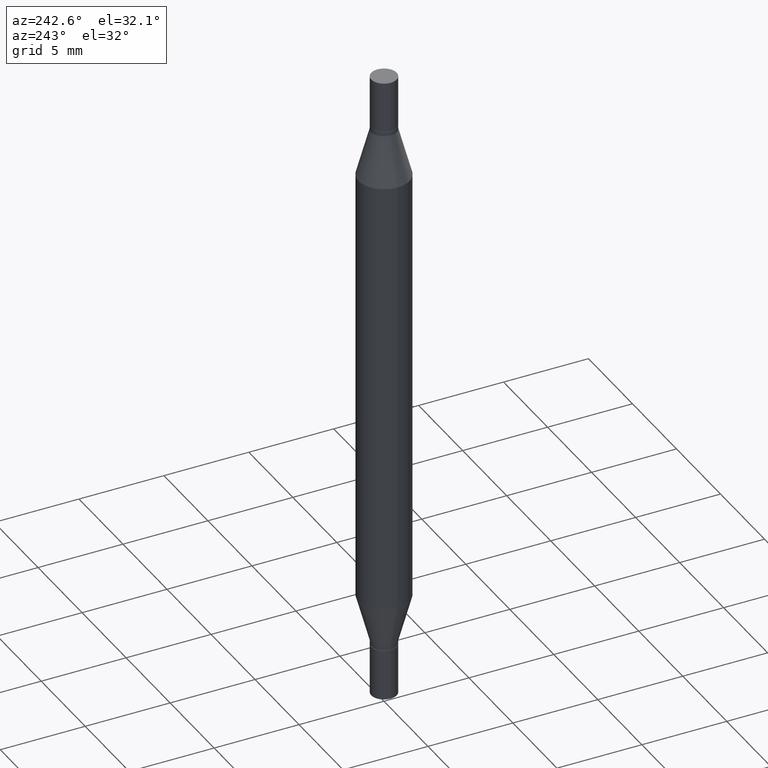
[diagram: clean part render]
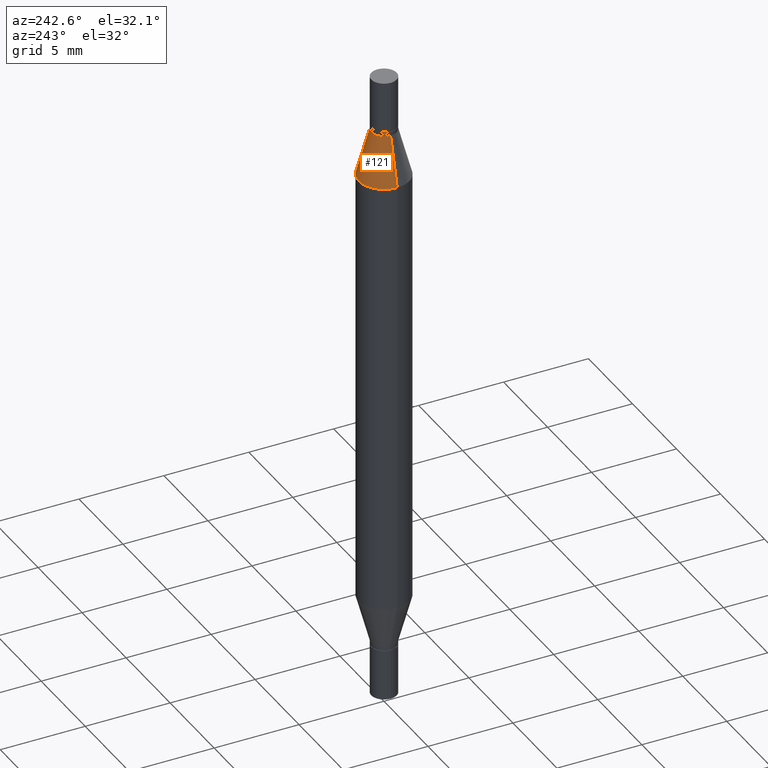
[diagram: same view with one face highlighted and labeled with its STEP entity id]
A machine part, auxiliary view. The second image highlights one B-rep face of the part: STEP entity #121.
In plain terms, the highlighted conical surface has half-angle 15 deg.
Its self-contained STEP definition (entity closure, byte-faithful):
#20 = CARTESIAN_POINT ( 'NONE',  ( 3.076410765668156654E-29, -8.311408901143919011E-16, -0.2380954988232820146 ) ) ;
#26 = CARTESIAN_POINT ( 'NONE',  ( -0.02954999999999991661, -2.439811505568221169E-16, -0.1280000000000001137 ) ) ;
#63 = CARTESIAN_POINT ( 'NONE',  ( 3.345645873741884627E-29, -4.467088663909703532E-16, -0.1280000000000001137 ) ) ;
#65 = DIRECTION ( 'NONE',  ( 1.000000000000000000, -6.982962677686265133E-15, 0.000000000000000000 ) ) ;
#118 = LINE ( 'NONE', #26, #453 ) ;
#121 = ADVANCED_FACE ( 'NONE', ( #738 ), #760, .T. ) ;
#148 = ORIENTED_EDGE ( 'NONE', *, *, #591, .T. ) ;
#167 = VERTEX_POINT ( 'NONE', #646 ) ;
#190 = DIRECTION ( 'NONE',  ( 2.445468806185136597E-29, 3.491805094961124077E-15, 1.000000000000000000 ) ) ;
#193 = EDGE_CURVE ( 'NONE', #251, #167, #351, .T. ) ;
#202 = CIRCLE ( 'NONE', #717, 0.05904999999999999832 ) ;
#221 = DIRECTION ( 'NONE',  ( -2.445468806185136597E-29, -3.491805094961124077E-15, -1.000000000000000000 ) ) ;
#235 = AXIS2_PLACEMENT_3D ( 'NONE', #360, #501, #953 ) ;
#251 = VERTEX_POINT ( 'NONE', #383 ) ;
#311 = EDGE_LOOP ( 'NONE', ( #886, #526, #148, #549 ) ) ;
#347 = DIRECTION ( 'NONE',  ( 1.000000000000000000, -6.982962677686265133E-15, 0.000000000000000000 ) ) ;
#349 = AXIS2_PLACEMENT_3D ( 'NONE', #63, #221, #65 ) ;
#351 = CIRCLE ( 'NONE', #235, 0.02954999999999991661 ) ;
#360 = CARTESIAN_POINT ( 'NONE',  ( 3.345645873741884627E-29, -4.467088663909703532E-16, -0.1280000000000001137 ) ) ;
#368 = VERTEX_POINT ( 'NONE', #633 ) ;
#369 = CARTESIAN_POINT ( 'NONE',  ( 0.02954999999999991661, -6.530554135165988789E-16, -0.1280000000000001137 ) ) ;
#383 = CARTESIAN_POINT ( 'NONE',  ( 0.02954999999999991661, -6.530554135165988789E-16, -0.1280000000000001137 ) ) ;
#453 = VECTOR ( 'NONE', #639, 39.37007874015747433 ) ;
#455 = VECTOR ( 'NONE', #963, 39.37007874015747433 ) ;
#461 = EDGE_CURVE ( 'NONE', #167, #368, #118, .T. ) ;
#470 = VERTEX_POINT ( 'NONE', #626 ) ;
#501 = DIRECTION ( 'NONE',  ( 2.445468806185136597E-29, 3.491805094961124077E-15, 1.000000000000000000 ) ) ;
#526 = ORIENTED_EDGE ( 'NONE', *, *, #193, .F. ) ;
#549 = ORIENTED_EDGE ( 'NONE', *, *, #802, .T. ) ;
#591 = EDGE_CURVE ( 'NONE', #251, #470, #650, .T. ) ;
#626 = CARTESIAN_POINT ( 'NONE',  ( 0.05904999999999999832, -1.243484836231766624E-15, -0.2380954988232820146 ) ) ;
#633 = CARTESIAN_POINT ( 'NONE',  ( -0.05904999999999999832, -4.260284833459836245E-16, -0.2380954988232820146 ) ) ;
#639 = DIRECTION ( 'NONE',  ( -0.2588190451025213501, -1.597197180879714326E-15, -0.9659258262890682012 ) ) ;
#646 = CARTESIAN_POINT ( 'NONE',  ( -0.02954999999999991661, -2.275696666105042854E-16, -0.1280000000000001137 ) ) ;
#650 = LINE ( 'NONE', #369, #455 ) ;
#717 = AXIS2_PLACEMENT_3D ( 'NONE', #20, #190, #347 ) ;
#738 = FACE_OUTER_BOUND ( 'NONE', #311, .T. ) ;
#760 = CONICAL_SURFACE ( 'NONE', #349, 0.02954999999999991661, 0.2617993877991500740 ) ;
#802 = EDGE_CURVE ( 'NONE', #470, #368, #202, .T. ) ;
#886 = ORIENTED_EDGE ( 'NONE', *, *, #461, .F. ) ;
#953 = DIRECTION ( 'NONE',  ( 1.000000000000000000, -6.982962677686265133E-15, 0.000000000000000000 ) ) ;
#963 = DIRECTION ( 'NONE',  ( 0.2588190451025213501, -5.180148453816008779E-15, -0.9659258262890682012 ) ) ;